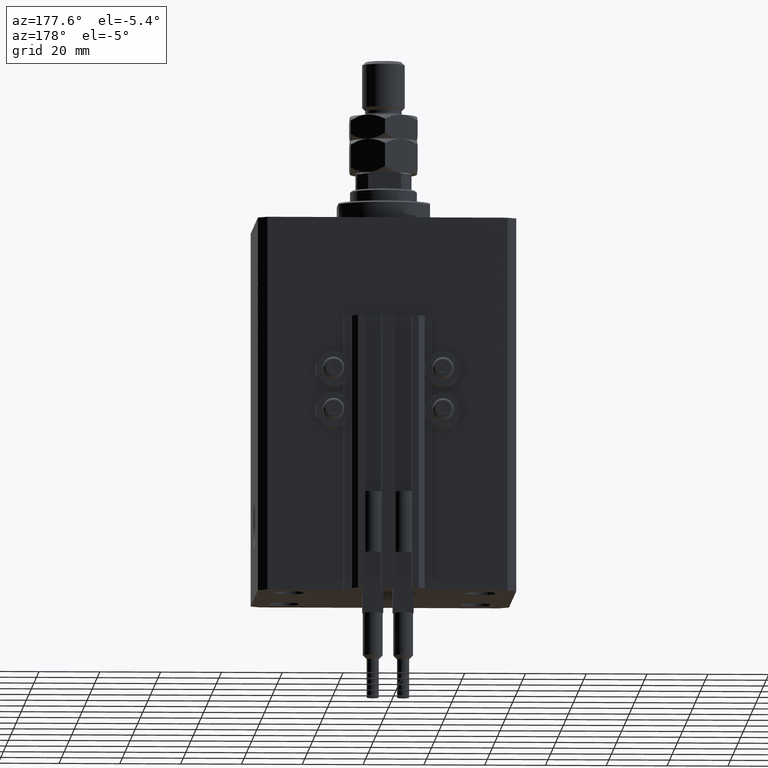
[diagram: clean part render]
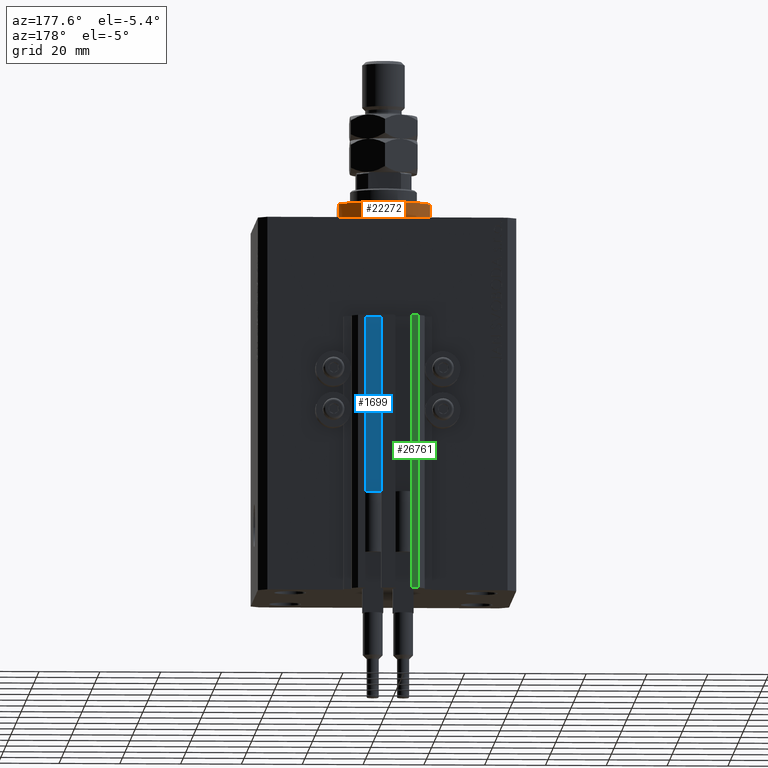
[diagram: same view with three faces highlighted in distinct colors, each labeled with its STEP entity id]
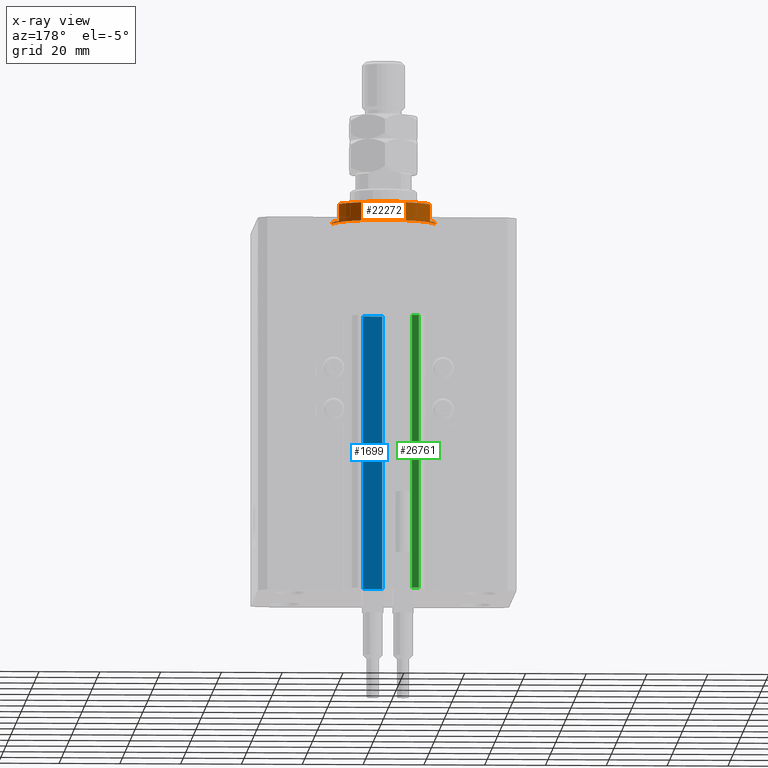
[diagram: x-ray of the same camera — body ghosted, the three highlighted faces saturated]
A machine part, auxiliary view with three faces highlighted in distinct colors.
The next image is the same camera in x-ray (body ghosted, the three faces saturated) — at least one of them is partly hidden behind the body in this view.
Their STEP definitions:

[orange] entity #22272 — the highlighted cylindrical surface (partial cylindrical patch) has radius 17 mm, axis along (0, 0, -1).
#320 = ORIENTED_EDGE ( 'NONE', *, *, #24792, .F. ) ;
#1139 = CARTESIAN_POINT ( 'NONE',  ( 0.000000000000000000, 0.000000000000000000, -7.000000000000000000 ) ) ;
#2422 = AXIS2_PLACEMENT_3D ( 'NONE', #1139, #4662, #35246 ) ;
#3036 = LINE ( 'NONE', #18341, #39641 ) ;
#3039 = ORIENTED_EDGE ( 'NONE', *, *, #42412, .F. ) ;
#4662 = DIRECTION ( 'NONE',  ( -0.000000000000000000, -0.000000000000000000, 1.000000000000000000 ) ) ;
#5554 = VERTEX_POINT ( 'NONE', #42899 ) ;
#6614 = DIRECTION ( 'NONE',  ( -1.000000000000000000, 0.000000000000000000, 0.000000000000000000 ) ) ;
#6988 = ORIENTED_EDGE ( 'NONE', *, *, #14773, .F. ) ;
#7624 = CARTESIAN_POINT ( 'NONE',  ( 0.000000000000000000, 0.000000000000000000, -6.500000000000013323 ) ) ;
#7986 = VERTEX_POINT ( 'NONE', #14916 ) ;
#8393 = DIRECTION ( 'NONE',  ( -0.000000000000000000, -0.000000000000000000, -1.000000000000000000 ) ) ;
#8596 = VERTEX_POINT ( 'NONE', #26035 ) ;
#9341 = DIRECTION ( 'NONE',  ( 0.000000000000000000, 0.000000000000000000, 1.000000000000000000 ) ) ;
#10931 = LINE ( 'NONE', #22463, #22448 ) ;
#11170 = DIRECTION ( 'NONE',  ( -0.000000000000000000, -0.000000000000000000, 1.000000000000000000 ) ) ;
#12934 = FACE_OUTER_BOUND ( 'NONE', #47620, .T. ) ;
#13326 = CARTESIAN_POINT ( 'NONE',  ( 17.00000000000000000, 0.000000000000000000, -1.000000000000000000 ) ) ;
#14773 = EDGE_CURVE ( 'NONE', #48733, #21366, #37786, .T. ) ;
#14916 = CARTESIAN_POINT ( 'NONE',  ( -15.00000000000000000, 8.000000000000001776, -6.500000000000013323 ) ) ;
#15268 = CARTESIAN_POINT ( 'NONE',  ( -14.99999999999999645, 8.000000000000003553, -1.000000000000000000 ) ) ;
#16285 = ORIENTED_EDGE ( 'NONE', *, *, #30656, .T. ) ;
#16302 = DIRECTION ( 'NONE',  ( -1.000000000000000000, 0.000000000000000000, 0.000000000000000000 ) ) ;
#16781 = DIRECTION ( 'NONE',  ( 0.000000000000000000, 0.000000000000000000, -1.000000000000000000 ) ) ;
#18124 = DIRECTION ( 'NONE',  ( -0.000000000000000000, -0.000000000000000000, 1.000000000000000000 ) ) ;
#18341 = CARTESIAN_POINT ( 'NONE',  ( 15.00000000000000000, 8.000000000000001776, -7.000000000000000000 ) ) ;
#18949 = DIRECTION ( 'NONE',  ( -0.000000000000000000, -0.000000000000000000, 1.000000000000000000 ) ) ;
#19836 = VERTEX_POINT ( 'NONE', #27424 ) ;
#19976 = CIRCLE ( 'NONE', #28763, 17.00000000000000000 ) ;
#20029 = EDGE_CURVE ( 'NONE', #8596, #7986, #19976, .T. ) ;
#21366 = VERTEX_POINT ( 'NONE', #15268 ) ;
#22272 = ADVANCED_FACE ( 'NONE', ( #12934 ), #23743, .T. ) ;
#22379 = LINE ( 'NONE', #44947, #30600 ) ;
#22448 = VECTOR ( 'NONE', #18949, 1000.000000000000000 ) ;
#22463 = CARTESIAN_POINT ( 'NONE',  ( 17.00000000000000000, 0.000000000000000000, -7.000000000000000000 ) ) ;
#23743 = CYLINDRICAL_SURFACE ( 'NONE', #2422, 17.00000000000000000 ) ;
#23934 = DIRECTION ( 'NONE',  ( 1.000000000000000000, 0.000000000000000000, 0.000000000000000000 ) ) ;
#24326 = CARTESIAN_POINT ( 'NONE',  ( 0.000000000000000000, 0.000000000000000000, -1.000000000000000000 ) ) ;
#24792 = EDGE_CURVE ( 'NONE', #32816, #29684, #10931, .T. ) ;
#24976 = EDGE_CURVE ( 'NONE', #19836, #29684, #44018, .T. ) ;
#25676 = DIRECTION ( 'NONE',  ( 0.000000000000000000, 0.000000000000000000, -1.000000000000000000 ) ) ;
#26035 = CARTESIAN_POINT ( 'NONE',  ( 15.00000000000000000, 8.000000000000001776, -6.500000000000013323 ) ) ;
#27154 = ORIENTED_EDGE ( 'NONE', *, *, #33995, .F. ) ;
#27424 = CARTESIAN_POINT ( 'NONE',  ( -17.00000000000000000, 2.081899558550500280E-15, -0.4999999999999995559 ) ) ;
#28763 = AXIS2_PLACEMENT_3D ( 'NONE', #7624, #9341, #47464 ) ;
#29684 = VERTEX_POINT ( 'NONE', #31898 ) ;
#29708 = CARTESIAN_POINT ( 'NONE',  ( -17.00000000000000000, 2.081899558550500280E-15, -1.000000000000000000 ) ) ;
#30420 = ORIENTED_EDGE ( 'NONE', *, *, #20029, .T. ) ;
#30600 = VECTOR ( 'NONE', #18124, 1000.000000000000000 ) ;
#30656 = EDGE_CURVE ( 'NONE', #48733, #19836, #22379, .T. ) ;
#31898 = CARTESIAN_POINT ( 'NONE',  ( 17.00000000000000000, 0.000000000000000000, -0.4999999999999995559 ) ) ;
#32148 = AXIS2_PLACEMENT_3D ( 'NONE', #32682, #25676, #6614 ) ;
#32682 = CARTESIAN_POINT ( 'NONE',  ( 0.000000000000000000, 0.000000000000000000, -1.000000000000000000 ) ) ;
#32816 = VERTEX_POINT ( 'NONE', #13326 ) ;
#33640 = AXIS2_PLACEMENT_3D ( 'NONE', #34959, #8393, #23934 ) ;
#33995 = EDGE_CURVE ( 'NONE', #5554, #32816, #34705, .T. ) ;
#34059 = VECTOR ( 'NONE', #11170, 1000.000000000000000 ) ;
#34705 = CIRCLE ( 'NONE', #36314, 17.00000000000000000 ) ;
#34959 = CARTESIAN_POINT ( 'NONE',  ( 0.000000000000000000, 0.000000000000000000, -0.4999999999999995559 ) ) ;
#35246 = DIRECTION ( 'NONE',  ( 1.000000000000000000, 0.000000000000000000, 0.000000000000000000 ) ) ;
#36314 = AXIS2_PLACEMENT_3D ( 'NONE', #24326, #16781, #16302 ) ;
#37786 = CIRCLE ( 'NONE', #32148, 17.00000000000000000 ) ;
#39641 = VECTOR ( 'NONE', #44429, 1000.000000000000000 ) ;
#41279 = LINE ( 'NONE', #45520, #34059 ) ;
#41902 = EDGE_CURVE ( 'NONE', #7986, #21366, #41279, .T. ) ;
#42412 = EDGE_CURVE ( 'NONE', #8596, #5554, #3036, .T. ) ;
#42899 = CARTESIAN_POINT ( 'NONE',  ( 14.99999999999999645, 8.000000000000003553, -1.000000000000000000 ) ) ;
#43479 = ORIENTED_EDGE ( 'NONE', *, *, #41902, .T. ) ;
#44018 = CIRCLE ( 'NONE', #33640, 17.00000000000000000 ) ;
#44429 = DIRECTION ( 'NONE',  ( -0.000000000000000000, -0.000000000000000000, 1.000000000000000000 ) ) ;
#44947 = CARTESIAN_POINT ( 'NONE',  ( -17.00000000000000000, 2.081899558550500280E-15, -7.000000000000000000 ) ) ;
#45520 = CARTESIAN_POINT ( 'NONE',  ( -15.00000000000000000, 8.000000000000001776, -7.000000000000000000 ) ) ;
#47464 = DIRECTION ( 'NONE',  ( -1.000000000000000000, 0.000000000000000000, 0.000000000000000000 ) ) ;
#47620 = EDGE_LOOP ( 'NONE', ( #6988, #16285, #48110, #320, #27154, #3039, #30420, #43479 ) ) ;
#48110 = ORIENTED_EDGE ( 'NONE', *, *, #24976, .T. ) ;
#48733 = VERTEX_POINT ( 'NONE', #29708 ) ;

[blue] entity #1699 — the highlighted planar face has unit normal (0, 1, 0).
#432 = DIRECTION ( 'NONE',  ( 0.000000000000000000, 0.000000000000000000, 1.000000000000000000 ) ) ;
#1699 = ADVANCED_FACE ( 'NONE', ( #40124 ), #21332, .T. ) ;
#1775 = ORIENTED_EDGE ( 'NONE', *, *, #3851, .F. ) ;
#2156 = VERTEX_POINT ( 'NONE', #22916 ) ;
#3851 = EDGE_CURVE ( 'NONE', #2156, #17088, #26562, .T. ) ;
#5515 = CARTESIAN_POINT ( 'NONE',  ( 8.199999999999999289, 33.50000000000000000, -123.0000000000000000 ) ) ;
#6089 = CARTESIAN_POINT ( 'NONE',  ( 8.199999999999999289, 33.50000000000000000, -123.0000000000000000 ) ) ;
#8333 = CARTESIAN_POINT ( 'NONE',  ( 8.199999999999999289, 33.50000000000000000, -33.00000000000000000 ) ) ;
#9283 = DIRECTION ( 'NONE',  ( 0.000000000000000000, 1.000000000000000000, -0.000000000000000000 ) ) ;
#9775 = ORIENTED_EDGE ( 'NONE', *, *, #27156, .T. ) ;
#13866 = LINE ( 'NONE', #6089, #44924 ) ;
#17088 = VERTEX_POINT ( 'NONE', #22403 ) ;
#18075 = VERTEX_POINT ( 'NONE', #32194 ) ;
#19869 = DIRECTION ( 'NONE',  ( -1.000000000000000000, 0.000000000000000000, 0.000000000000000000 ) ) ;
#21332 = PLANE ( 'NONE',  #30260 ) ;
#22403 = CARTESIAN_POINT ( 'NONE',  ( 8.199999999999999289, 33.50000000000000000, -33.00000000000000000 ) ) ;
#22916 = CARTESIAN_POINT ( 'NONE',  ( 8.199999999999999289, 33.50000000000000000, -123.0000000000000000 ) ) ;
#23715 = EDGE_CURVE ( 'NONE', #17088, #37259, #42438, .T. ) ;
#23792 = CARTESIAN_POINT ( 'NONE',  ( 8.199999999999999289, 33.50000000000000000, -123.0000000000000000 ) ) ;
#24583 = DIRECTION ( 'NONE',  ( 0.000000000000000000, 0.000000000000000000, 1.000000000000000000 ) ) ;
#24797 = VECTOR ( 'NONE', #19869, 1000.000000000000000 ) ;
#25234 = ORIENTED_EDGE ( 'NONE', *, *, #23715, .F. ) ;
#26288 = CARTESIAN_POINT ( 'NONE',  ( 1.800000000000000933, 33.50000000000000000, -123.0000000000000000 ) ) ;
#26562 = LINE ( 'NONE', #23792, #33422 ) ;
#26851 = ORIENTED_EDGE ( 'NONE', *, *, #42965, .T. ) ;
#27156 = EDGE_CURVE ( 'NONE', #2156, #18075, #13866, .T. ) ;
#29648 = DIRECTION ( 'NONE',  ( -1.000000000000000000, 0.000000000000000000, 0.000000000000000000 ) ) ;
#30260 = AXIS2_PLACEMENT_3D ( 'NONE', #5515, #9283, #24583 ) ;
#32194 = CARTESIAN_POINT ( 'NONE',  ( 1.800000000000000933, 33.50000000000000000, -123.0000000000000000 ) ) ;
#33422 = VECTOR ( 'NONE', #49629, 1000.000000000000000 ) ;
#36067 = CARTESIAN_POINT ( 'NONE',  ( 1.800000000000000933, 33.50000000000000000, -33.00000000000000000 ) ) ;
#37259 = VERTEX_POINT ( 'NONE', #36067 ) ;
#37821 = LINE ( 'NONE', #26288, #42905 ) ;
#40124 = FACE_OUTER_BOUND ( 'NONE', #42501, .T. ) ;
#42438 = LINE ( 'NONE', #8333, #24797 ) ;
#42501 = EDGE_LOOP ( 'NONE', ( #25234, #1775, #9775, #26851 ) ) ;
#42905 = VECTOR ( 'NONE', #432, 1000.000000000000000 ) ;
#42965 = EDGE_CURVE ( 'NONE', #18075, #37259, #37821, .T. ) ;
#44924 = VECTOR ( 'NONE', #29648, 1000.000000000000000 ) ;
#49629 = DIRECTION ( 'NONE',  ( 0.000000000000000000, 0.000000000000000000, 1.000000000000000000 ) ) ;

[green] entity #26761 — the highlighted planar face has unit normal (0, 1, 0).
#156 = CARTESIAN_POINT ( 'NONE',  ( -7.650000000000002132, 39.49999999999999289, -123.0000000000000000 ) ) ;
#1555 = LINE ( 'NONE', #16859, #37501 ) ;
#1624 = ORIENTED_EDGE ( 'NONE', *, *, #8284, .T. ) ;
#2800 = VERTEX_POINT ( 'NONE', #10780 ) ;
#3210 = EDGE_CURVE ( 'NONE', #2800, #9634, #1555, .T. ) ;
#4147 = ORIENTED_EDGE ( 'NONE', *, *, #33979, .F. ) ;
#8284 = EDGE_CURVE ( 'NONE', #9634, #48068, #23332, .T. ) ;
#9634 = VERTEX_POINT ( 'NONE', #19995 ) ;
#10442 = EDGE_LOOP ( 'NONE', ( #4147, #46215, #14626, #1624 ) ) ;
#10780 = CARTESIAN_POINT ( 'NONE',  ( -7.650000000000002132, 39.49999999999999289, -123.0000000000000000 ) ) ;
#12201 = FACE_OUTER_BOUND ( 'NONE', #10442, .T. ) ;
#14626 = ORIENTED_EDGE ( 'NONE', *, *, #3210, .T. ) ;
#15944 = PLANE ( 'NONE',  #16056 ) ;
#16056 = AXIS2_PLACEMENT_3D ( 'NONE', #156, #30750, #19476 ) ;
#16803 = VECTOR ( 'NONE', #40667, 1000.000000000000000 ) ;
#16859 = CARTESIAN_POINT ( 'NONE',  ( -7.650000000000002132, 39.49999999999999289, -123.0000000000000000 ) ) ;
#19476 = DIRECTION ( 'NONE',  ( 0.000000000000000000, 0.000000000000000000, 1.000000000000000000 ) ) ;
#19995 = CARTESIAN_POINT ( 'NONE',  ( -10.00000000000000000, 39.49999999999999289, -123.0000000000000000 ) ) ;
#20325 = CARTESIAN_POINT ( 'NONE',  ( -7.650000000000002132, 39.49999999999999289, -33.00000000000000000 ) ) ;
#21369 = LINE ( 'NONE', #21622, #16803 ) ;
#21622 = CARTESIAN_POINT ( 'NONE',  ( -7.650000000000002132, 39.49999999999999289, -123.0000000000000000 ) ) ;
#21925 = CARTESIAN_POINT ( 'NONE',  ( -7.650000000000002132, 39.49999999999999289, -33.00000000000000000 ) ) ;
#23158 = VECTOR ( 'NONE', #30329, 1000.000000000000000 ) ;
#23332 = LINE ( 'NONE', #30831, #23158 ) ;
#23532 = VERTEX_POINT ( 'NONE', #21925 ) ;
#25366 = EDGE_CURVE ( 'NONE', #2800, #23532, #21369, .T. ) ;
#26761 = ADVANCED_FACE ( 'NONE', ( #12201 ), #15944, .T. ) ;
#27350 = DIRECTION ( 'NONE',  ( -1.000000000000000000, 0.000000000000000000, 0.000000000000000000 ) ) ;
#30329 = DIRECTION ( 'NONE',  ( 0.000000000000000000, 0.000000000000000000, 1.000000000000000000 ) ) ;
#30750 = DIRECTION ( 'NONE',  ( 0.000000000000000000, 1.000000000000000000, -0.000000000000000000 ) ) ;
#30831 = CARTESIAN_POINT ( 'NONE',  ( -10.00000000000000000, 39.49999999999999289, -123.0000000000000000 ) ) ;
#32157 = DIRECTION ( 'NONE',  ( -1.000000000000000000, 0.000000000000000000, 0.000000000000000000 ) ) ;
#33979 = EDGE_CURVE ( 'NONE', #23532, #48068, #42654, .T. ) ;
#37501 = VECTOR ( 'NONE', #32157, 1000.000000000000000 ) ;
#39537 = VECTOR ( 'NONE', #27350, 1000.000000000000000 ) ;
#40667 = DIRECTION ( 'NONE',  ( 0.000000000000000000, 0.000000000000000000, 1.000000000000000000 ) ) ;
#42654 = LINE ( 'NONE', #20325, #39537 ) ;
#46215 = ORIENTED_EDGE ( 'NONE', *, *, #25366, .F. ) ;
#48068 = VERTEX_POINT ( 'NONE', #48898 ) ;
#48898 = CARTESIAN_POINT ( 'NONE',  ( -10.00000000000000000, 39.49999999999999289, -33.00000000000000000 ) ) ;